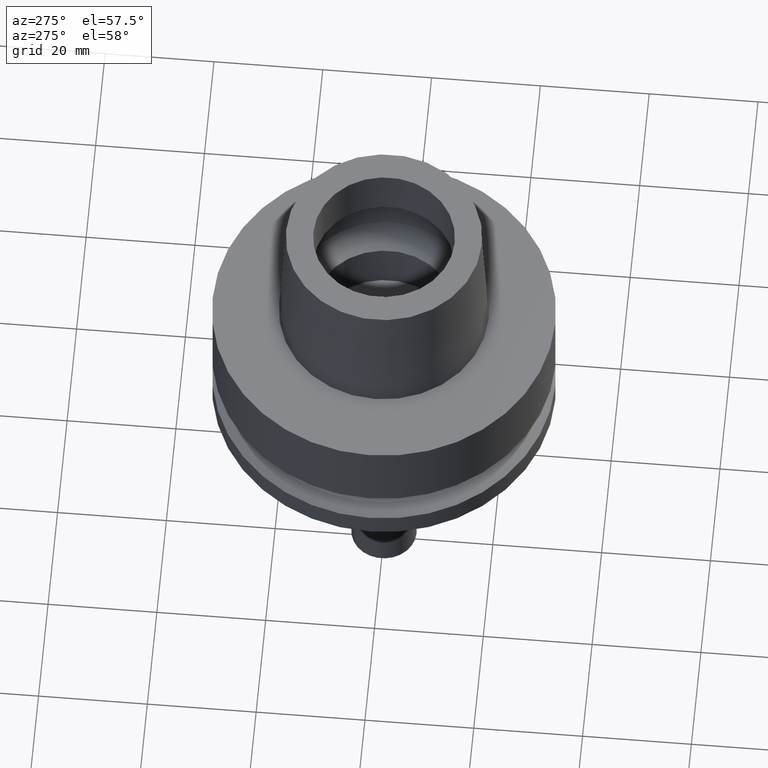
[diagram: clean part render]
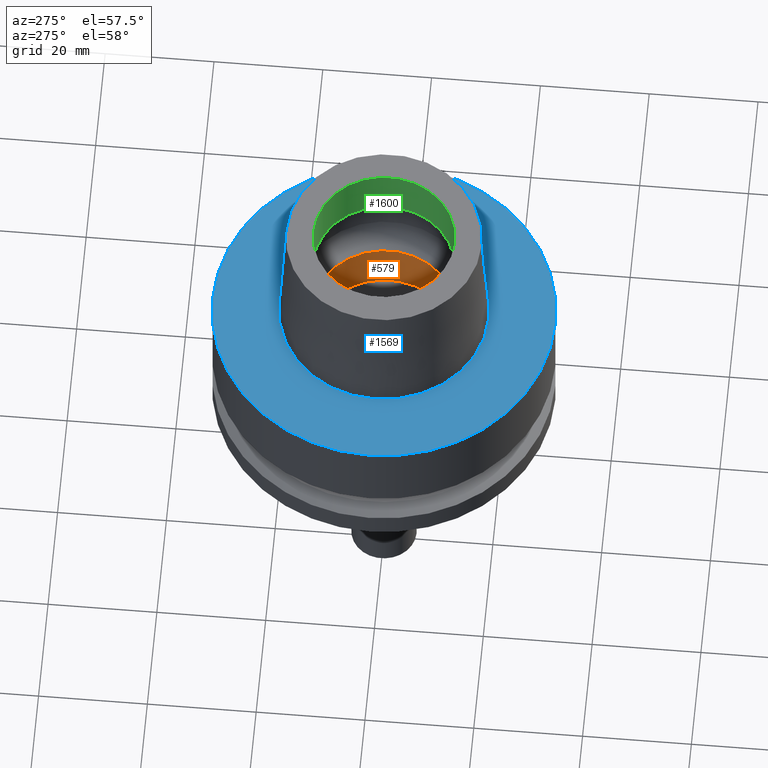
[diagram: same view with three faces highlighted in distinct colors, each labeled with its STEP entity id]
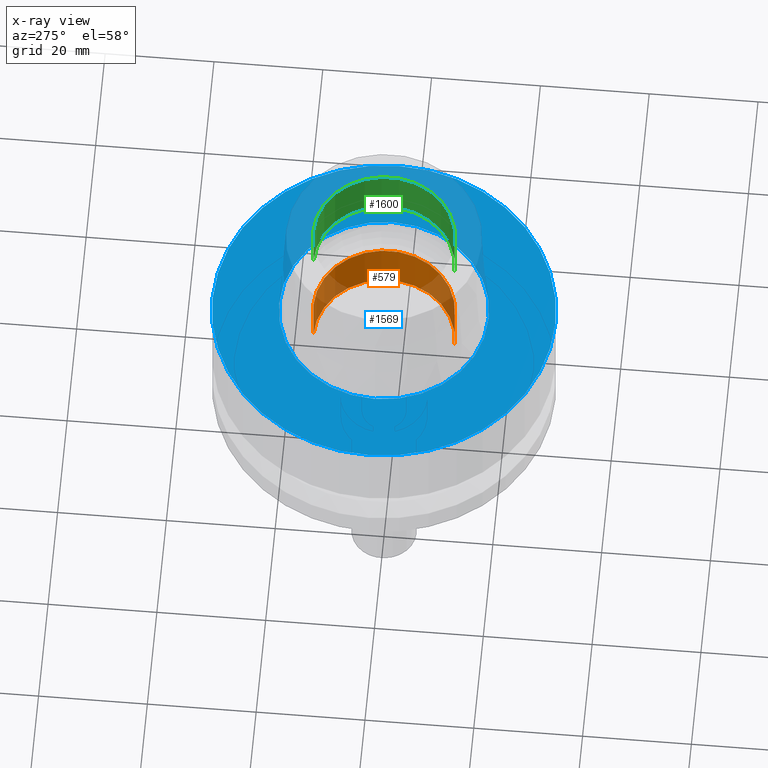
[diagram: x-ray of the same camera — body ghosted, the three highlighted faces saturated]
A machine part, auxiliary view with three faces highlighted in distinct colors.
The next image is the same camera in x-ray (body ghosted, the three faces saturated) — at least one of them is partly hidden behind the body in this view.
Their STEP definitions:

[orange] entity #579 — the highlighted cylindrical surface (partial cylindrical patch) has radius 13 mm, axis along (0, 0, 1).
#105 = ORIENTED_EDGE ( 'NONE', *, *, #725, .T. ) ;
#140 = FACE_OUTER_BOUND ( 'NONE', #1310, .T. ) ;
#151 = DIRECTION ( 'NONE',  ( 0.0000000000000000000, 1.000000000000000000, 0.0000000000000000000 ) ) ;
#234 = CARTESIAN_POINT ( 'NONE',  ( 0.0000000000000000000, 13.00000000000000000, 1.421085471519999938E-13 ) ) ;
#281 = VERTEX_POINT ( 'NONE', #234 ) ;
#336 = EDGE_CURVE ( 'NONE', #545, #281, #1287, .T. ) ;
#370 = CYLINDRICAL_SURFACE ( 'NONE', #1258, 13.00000000000000000 ) ;
#545 = VERTEX_POINT ( 'NONE', #800 ) ;
#573 = AXIS2_PLACEMENT_3D ( 'NONE', #819, #1657, #2771 ) ;
#579 = ADVANCED_FACE ( 'NONE', ( #140 ), #370, .F. ) ;
#616 = CARTESIAN_POINT ( 'NONE',  ( 0.0000000000000000000, 0.0000000000000000000, 1.563194018672000033E-13 ) ) ;
#671 = CIRCLE ( 'NONE', #573, 13.00000000000000000 ) ;
#683 = CARTESIAN_POINT ( 'NONE',  ( 0.0000000000000000000, -13.00000000000000000, 1.421085471519999938E-13 ) ) ;
#725 = EDGE_CURVE ( 'NONE', #2793, #281, #1206, .T. ) ;
#762 = CARTESIAN_POINT ( 'NONE',  ( 0.0000000000000000000, -13.00000000000000000, -9.950000000000001066 ) ) ;
#789 = EDGE_CURVE ( 'NONE', #2708, #2793, #1390, .T. ) ;
#800 = CARTESIAN_POINT ( 'NONE',  ( 0.0000000000000000000, 13.00000000000000000, -9.950000000000001066 ) ) ;
#819 = CARTESIAN_POINT ( 'NONE',  ( 0.0000000000000000000, 0.0000000000000000000, -9.950000000000001066 ) ) ;
#1033 = AXIS2_PLACEMENT_3D ( 'NONE', #616, #1324, #1484 ) ;
#1206 = CIRCLE ( 'NONE', #1033, 13.00000000000000000 ) ;
#1234 = CARTESIAN_POINT ( 'NONE',  ( 0.0000000000000000000, 0.0000000000000000000, -75.80000000000001137 ) ) ;
#1258 = AXIS2_PLACEMENT_3D ( 'NONE', #1234, #2083, #151 ) ;
#1287 = LINE ( 'NONE', #2124, #1968 ) ;
#1310 = EDGE_LOOP ( 'NONE', ( #1955, #2441, #105, #2031 ) ) ;
#1324 = DIRECTION ( 'NONE',  ( 0.0000000000000000000, 0.0000000000000000000, 1.000000000000000000 ) ) ;
#1390 = LINE ( 'NONE', #762, #1739 ) ;
#1415 = EDGE_CURVE ( 'NONE', #545, #2708, #671, .T. ) ;
#1484 = DIRECTION ( 'NONE',  ( 0.0000000000000000000, -1.000000000000000000, 0.0000000000000000000 ) ) ;
#1657 = DIRECTION ( 'NONE',  ( 0.0000000000000000000, 0.0000000000000000000, -1.000000000000000000 ) ) ;
#1739 = VECTOR ( 'NONE', #2070, 1000.000000000000000 ) ;
#1955 = ORIENTED_EDGE ( 'NONE', *, *, #1415, .T. ) ;
#1968 = VECTOR ( 'NONE', #2367, 1000.000000000000000 ) ;
#2031 = ORIENTED_EDGE ( 'NONE', *, *, #336, .F. ) ;
#2070 = DIRECTION ( 'NONE',  ( 0.0000000000000000000, 0.0000000000000000000, 1.000000000000000000 ) ) ;
#2083 = DIRECTION ( 'NONE',  ( 0.0000000000000000000, 0.0000000000000000000, 1.000000000000000000 ) ) ;
#2124 = CARTESIAN_POINT ( 'NONE',  ( 0.0000000000000000000, 13.00000000000000000, -9.950000000000001066 ) ) ;
#2367 = DIRECTION ( 'NONE',  ( 0.0000000000000000000, 0.0000000000000000000, 1.000000000000000000 ) ) ;
#2420 = CARTESIAN_POINT ( 'NONE',  ( 0.0000000000000000000, -13.00000000000000000, -9.950000000000001066 ) ) ;
#2441 = ORIENTED_EDGE ( 'NONE', *, *, #789, .T. ) ;
#2708 = VERTEX_POINT ( 'NONE', #2420 ) ;
#2771 = DIRECTION ( 'NONE',  ( 0.0000000000000000000, 1.000000000000000000, 0.0000000000000000000 ) ) ;
#2793 = VERTEX_POINT ( 'NONE', #683 ) ;

[blue] entity #1569 — the highlighted planar face has unit normal (0, 0, 1).
#30 = CIRCLE ( 'NONE', #1078, 31.50000000000000000 ) ;
#52 = CARTESIAN_POINT ( 'NONE',  ( 0.0000000000000000000, -31.50000000000000000, 1.705302565823999875E-13 ) ) ;
#89 = DIRECTION ( 'NONE',  ( 0.0000000000000000000, 1.000000000000000000, 0.0000000000000000000 ) ) ;
#230 = CARTESIAN_POINT ( 'NONE',  ( 0.0000000000000000000, 0.0000000000000000000, 1.705302565823999875E-13 ) ) ;
#445 = FACE_OUTER_BOUND ( 'NONE', #1542, .T. ) ;
#728 = CIRCLE ( 'NONE', #2654, 31.50000000000000000 ) ;
#739 = CARTESIAN_POINT ( 'NONE',  ( 0.0000000000000000000, -19.24999954280000125, 3.410605131648000255E-13 ) ) ;
#971 = ORIENTED_EDGE ( 'NONE', *, *, #2385, .F. ) ;
#983 = DIRECTION ( 'NONE',  ( 0.0000000000000000000, 0.0000000000000000000, 1.000000000000000000 ) ) ;
#988 = AXIS2_PLACEMENT_3D ( 'NONE', #1096, #1502, #1940 ) ;
#994 = EDGE_CURVE ( 'NONE', #1554, #2397, #30, .T. ) ;
#1034 = EDGE_LOOP ( 'NONE', ( #971, #1147 ) ) ;
#1065 = CARTESIAN_POINT ( 'NONE',  ( 0.0000000000000000000, 0.0000000000000000000, 1.705302565823999875E-13 ) ) ;
#1078 = AXIS2_PLACEMENT_3D ( 'NONE', #230, #1732, #2176 ) ;
#1096 = CARTESIAN_POINT ( 'NONE',  ( 0.0000000000000000000, 0.0000000000000000000, 0.0000000000000000000 ) ) ;
#1104 = VERTEX_POINT ( 'NONE', #739 ) ;
#1147 = ORIENTED_EDGE ( 'NONE', *, *, #1738, .F. ) ;
#1305 = CIRCLE ( 'NONE', #1974, 19.24999954280000125 ) ;
#1326 = ORIENTED_EDGE ( 'NONE', *, *, #994, .F. ) ;
#1502 = DIRECTION ( 'NONE',  ( 0.0000000000000000000, 0.0000000000000000000, 1.000000000000000000 ) ) ;
#1542 = EDGE_LOOP ( 'NONE', ( #2184, #1326 ) ) ;
#1554 = VERTEX_POINT ( 'NONE', #52 ) ;
#1569 = ADVANCED_FACE ( 'NONE', ( #445, #2432 ), #2401, .T. ) ;
#1643 = AXIS2_PLACEMENT_3D ( 'NONE', #2674, #983, #2685 ) ;
#1732 = DIRECTION ( 'NONE',  ( 0.0000000000000000000, 0.0000000000000000000, -1.000000000000000000 ) ) ;
#1738 = EDGE_CURVE ( 'NONE', #1104, #2296, #1828, .T. ) ;
#1828 = CIRCLE ( 'NONE', #1643, 19.24999954280000125 ) ;
#1845 = CARTESIAN_POINT ( 'NONE',  ( 0.0000000000000000000, 0.0000000000000000000, 5.115907697473000027E-13 ) ) ;
#1926 = EDGE_CURVE ( 'NONE', #2397, #1554, #728, .T. ) ;
#1940 = DIRECTION ( 'NONE',  ( 1.000000000000000000, 0.0000000000000000000, 0.0000000000000000000 ) ) ;
#1974 = AXIS2_PLACEMENT_3D ( 'NONE', #1845, #2224, #89 ) ;
#2081 = DIRECTION ( 'NONE',  ( 0.0000000000000000000, 0.0000000000000000000, -1.000000000000000000 ) ) ;
#2176 = DIRECTION ( 'NONE',  ( 0.0000000000000000000, -1.000000000000000000, 0.0000000000000000000 ) ) ;
#2184 = ORIENTED_EDGE ( 'NONE', *, *, #1926, .F. ) ;
#2224 = DIRECTION ( 'NONE',  ( 0.0000000000000000000, 0.0000000000000000000, 1.000000000000000000 ) ) ;
#2296 = VERTEX_POINT ( 'NONE', #2657 ) ;
#2385 = EDGE_CURVE ( 'NONE', #2296, #1104, #1305, .T. ) ;
#2397 = VERTEX_POINT ( 'NONE', #2719 ) ;
#2401 = PLANE ( 'NONE',  #988 ) ;
#2432 = FACE_BOUND ( 'NONE', #1034, .T. ) ;
#2525 = DIRECTION ( 'NONE',  ( 0.0000000000000000000, 1.000000000000000000, 0.0000000000000000000 ) ) ;
#2654 = AXIS2_PLACEMENT_3D ( 'NONE', #1065, #2081, #2525 ) ;
#2657 = CARTESIAN_POINT ( 'NONE',  ( 0.0000000000000000000, 19.24999954280000125, 3.410605131648000255E-13 ) ) ;
#2674 = CARTESIAN_POINT ( 'NONE',  ( 0.0000000000000000000, 0.0000000000000000000, 5.115907697473000027E-13 ) ) ;
#2685 = DIRECTION ( 'NONE',  ( 0.0000000000000000000, -1.000000000000000000, 0.0000000000000000000 ) ) ;
#2719 = CARTESIAN_POINT ( 'NONE',  ( 0.0000000000000000000, 31.50000000000000000, 1.705302565823999875E-13 ) ) ;

[green] entity #1600 — the highlighted cylindrical surface (partial cylindrical patch) has radius 13 mm, axis along (0, 0, 1).
#29 = CARTESIAN_POINT ( 'NONE',  ( 0.0000000000000000000, 0.0000000000000000000, 14.99602540378000093 ) ) ;
#33 = CIRCLE ( 'NONE', #2097, 13.00000000000000000 ) ;
#66 = CARTESIAN_POINT ( 'NONE',  ( 0.0000000000000000000, -13.00000000000000000, 25.00000000000000000 ) ) ;
#170 = CIRCLE ( 'NONE', #2006, 13.00000000000000000 ) ;
#237 = CARTESIAN_POINT ( 'NONE',  ( 0.0000000000000000000, 13.00000000000000000, 14.99602540378000093 ) ) ;
#470 = DIRECTION ( 'NONE',  ( 0.0000000000000000000, 0.0000000000000000000, -1.000000000000000000 ) ) ;
#485 = DIRECTION ( 'NONE',  ( 0.0000000000000000000, 1.000000000000000000, 0.0000000000000000000 ) ) ;
#610 = DIRECTION ( 'NONE',  ( 0.0000000000000000000, -9.659541928455000240E-14, 1.000000000000000000 ) ) ;
#622 = VECTOR ( 'NONE', #610, 1000.000000000000000 ) ;
#746 = DIRECTION ( 'NONE',  ( 0.0000000000000000000, -1.000000000000000000, 0.0000000000000000000 ) ) ;
#779 = EDGE_LOOP ( 'NONE', ( #1092, #2226, #1597, #891 ) ) ;
#845 = LINE ( 'NONE', #2542, #622 ) ;
#891 = ORIENTED_EDGE ( 'NONE', *, *, #1481, .F. ) ;
#906 = CARTESIAN_POINT ( 'NONE',  ( 0.0000000000000000000, -13.00000000000000000, 14.99602540378000093 ) ) ;
#1092 = ORIENTED_EDGE ( 'NONE', *, *, #1651, .T. ) ;
#1170 = CARTESIAN_POINT ( 'NONE',  ( 0.0000000000000000000, 13.00000000000000000, 25.00000000000000000 ) ) ;
#1364 = DIRECTION ( 'NONE',  ( 0.0000000000000000000, 1.000000000000000000, 0.0000000000000000000 ) ) ;
#1481 = EDGE_CURVE ( 'NONE', #2179, #1756, #845, .T. ) ;
#1520 = DIRECTION ( 'NONE',  ( 0.0000000000000000000, 0.0000000000000000000, 1.000000000000000000 ) ) ;
#1546 = FACE_OUTER_BOUND ( 'NONE', #779, .T. ) ;
#1575 = DIRECTION ( 'NONE',  ( 0.0000000000000000000, 0.0000000000000000000, 1.000000000000000000 ) ) ;
#1584 = VERTEX_POINT ( 'NONE', #906 ) ;
#1597 = ORIENTED_EDGE ( 'NONE', *, *, #2309, .T. ) ;
#1600 = ADVANCED_FACE ( 'NONE', ( #1546 ), #2600, .F. ) ;
#1651 = EDGE_CURVE ( 'NONE', #2179, #1584, #33, .T. ) ;
#1756 = VERTEX_POINT ( 'NONE', #1170 ) ;
#1800 = CARTESIAN_POINT ( 'NONE',  ( 0.0000000000000000000, 0.0000000000000000000, 25.00000000000000000 ) ) ;
#1953 = DIRECTION ( 'NONE',  ( 0.0000000000000000000, 9.659541928455000240E-14, 1.000000000000000000 ) ) ;
#1987 = LINE ( 'NONE', #2156, #2695 ) ;
#2006 = AXIS2_PLACEMENT_3D ( 'NONE', #1800, #1575, #746 ) ;
#2096 = EDGE_CURVE ( 'NONE', #1584, #2621, #1987, .T. ) ;
#2097 = AXIS2_PLACEMENT_3D ( 'NONE', #29, #470, #485 ) ;
#2156 = CARTESIAN_POINT ( 'NONE',  ( 0.0000000000000000000, -13.00000000000000000, 14.99602540378000093 ) ) ;
#2179 = VERTEX_POINT ( 'NONE', #237 ) ;
#2203 = CARTESIAN_POINT ( 'NONE',  ( 0.0000000000000000000, 0.0000000000000000000, -75.80000000000001137 ) ) ;
#2226 = ORIENTED_EDGE ( 'NONE', *, *, #2096, .T. ) ;
#2309 = EDGE_CURVE ( 'NONE', #2621, #1756, #170, .T. ) ;
#2424 = AXIS2_PLACEMENT_3D ( 'NONE', #2203, #1520, #1364 ) ;
#2542 = CARTESIAN_POINT ( 'NONE',  ( 0.0000000000000000000, 13.00000000000000000, 14.99602540378000093 ) ) ;
#2600 = CYLINDRICAL_SURFACE ( 'NONE', #2424, 13.00000000000000000 ) ;
#2621 = VERTEX_POINT ( 'NONE', #66 ) ;
#2695 = VECTOR ( 'NONE', #1953, 1000.000000000000000 ) ;